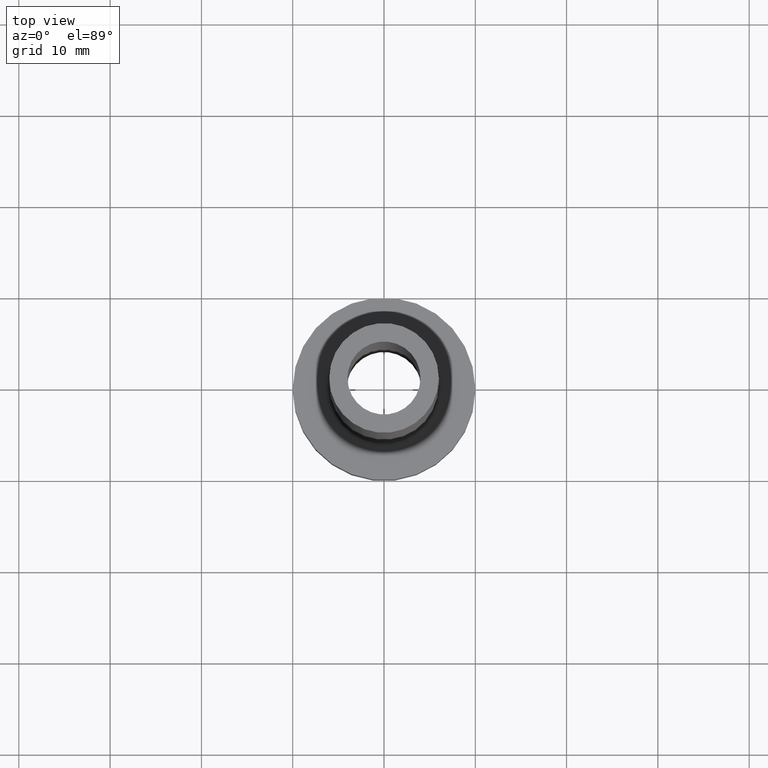
[diagram: clean part render]
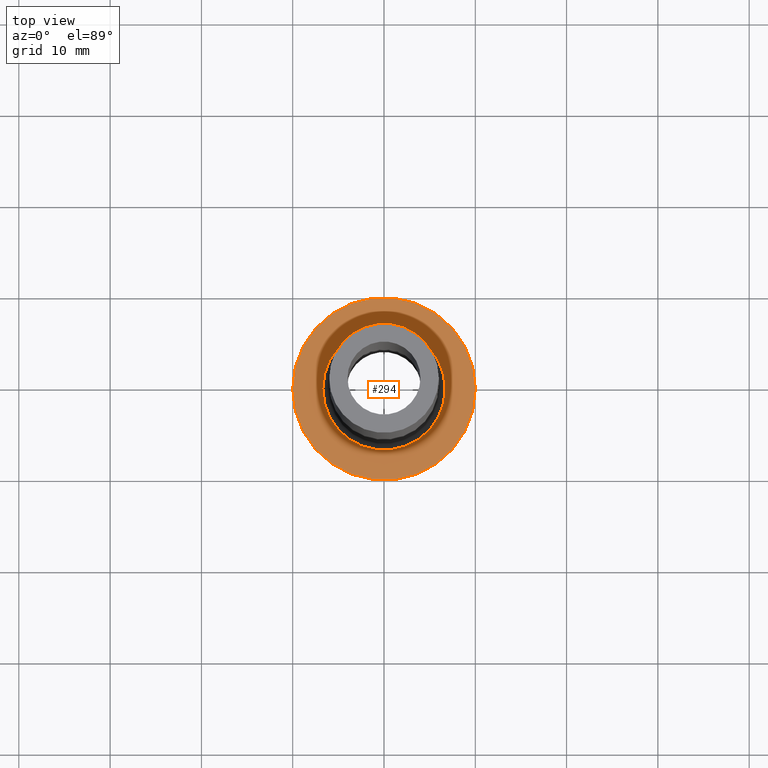
[diagram: same view with one face highlighted and labeled with its STEP entity id]
A machine part, top view. The second image highlights one B-rep face of the part: STEP entity #294.
In plain terms, the highlighted planar face has unit normal (0, 0, 1).
Its self-contained STEP definition (entity closure, byte-faithful):
#19 = VERTEX_POINT ( 'NONE', #330 ) ;
#28 = DIRECTION ( 'NONE',  ( 1.000000000000000000, 0.000000000000000000, 0.000000000000000000 ) ) ;
#33 = CIRCLE ( 'NONE', #325, 10.00000000000000000 ) ;
#44 = CIRCLE ( 'NONE', #353, 10.00000000000000000 ) ;
#58 = DIRECTION ( 'NONE',  ( -0.000000000000000000, -0.000000000000000000, -1.000000000000000000 ) ) ;
#76 = EDGE_CURVE ( 'NONE', #93, #385, #365, .T. ) ;
#93 = VERTEX_POINT ( 'NONE', #202 ) ;
#101 = DIRECTION ( 'NONE',  ( 1.000000000000000000, 0.000000000000000000, 0.000000000000000000 ) ) ;
#106 = CARTESIAN_POINT ( 'NONE',  ( -6.700000000000001066, 8.205133554287267548E-16, 6.999999999999999112 ) ) ;
#108 = DIRECTION ( 'NONE',  ( 0.000000000000000000, 0.000000000000000000, 1.000000000000000000 ) ) ;
#131 = ORIENTED_EDGE ( 'NONE', *, *, #194, .T. ) ;
#132 = DIRECTION ( 'NONE',  ( 0.000000000000000000, 0.000000000000000000, 1.000000000000000000 ) ) ;
#138 = DIRECTION ( 'NONE',  ( 0.000000000000000000, 0.000000000000000000, 1.000000000000000000 ) ) ;
#153 = AXIS2_PLACEMENT_3D ( 'NONE', #318, #138, #350 ) ;
#166 = CARTESIAN_POINT ( 'NONE',  ( 0.000000000000000000, 0.000000000000000000, 7.000000000000000000 ) ) ;
#175 = EDGE_CURVE ( 'NONE', #364, #19, #33, .T. ) ;
#176 = CARTESIAN_POINT ( 'NONE',  ( 0.000000000000000000, 0.000000000000000000, 7.000000000000000000 ) ) ;
#182 = AXIS2_PLACEMENT_3D ( 'NONE', #408, #58, #267 ) ;
#194 = EDGE_CURVE ( 'NONE', #385, #93, #450, .T. ) ;
#202 = CARTESIAN_POINT ( 'NONE',  ( 6.700000000000001066, 0.000000000000000000, 6.999999999999999112 ) ) ;
#250 = EDGE_CURVE ( 'NONE', #19, #364, #44, .T. ) ;
#252 = AXIS2_PLACEMENT_3D ( 'NONE', #436, #373, #101 ) ;
#253 = FACE_OUTER_BOUND ( 'NONE', #309, .T. ) ;
#267 = DIRECTION ( 'NONE',  ( 1.000000000000000000, 0.000000000000000000, 0.000000000000000000 ) ) ;
#294 = ADVANCED_FACE ( 'NONE', ( #351, #253 ), #320, .T. ) ;
#301 = DIRECTION ( 'NONE',  ( 1.000000000000000000, 0.000000000000000000, 0.000000000000000000 ) ) ;
#309 = EDGE_LOOP ( 'NONE', ( #327, #337 ) ) ;
#318 = CARTESIAN_POINT ( 'NONE',  ( 0.000000000000000000, 0.000000000000000000, 7.000000000000000000 ) ) ;
#320 = PLANE ( 'NONE',  #153 ) ;
#325 = AXIS2_PLACEMENT_3D ( 'NONE', #166, #132, #301 ) ;
#327 = ORIENTED_EDGE ( 'NONE', *, *, #250, .T. ) ;
#330 = CARTESIAN_POINT ( 'NONE',  ( -10.00000000000000000, 0.000000000000000000, 7.000000000000000000 ) ) ;
#337 = ORIENTED_EDGE ( 'NONE', *, *, #175, .T. ) ;
#350 = DIRECTION ( 'NONE',  ( 1.000000000000000000, 0.000000000000000000, -0.000000000000000000 ) ) ;
#351 = FACE_BOUND ( 'NONE', #440, .T. ) ;
#353 = AXIS2_PLACEMENT_3D ( 'NONE', #176, #108, #28 ) ;
#364 = VERTEX_POINT ( 'NONE', #453 ) ;
#365 = CIRCLE ( 'NONE', #252, 6.700000000000001066 ) ;
#373 = DIRECTION ( 'NONE',  ( -0.000000000000000000, -0.000000000000000000, -1.000000000000000000 ) ) ;
#385 = VERTEX_POINT ( 'NONE', #106 ) ;
#408 = CARTESIAN_POINT ( 'NONE',  ( 0.000000000000000000, 0.000000000000000000, 7.000000000000000000 ) ) ;
#427 = ORIENTED_EDGE ( 'NONE', *, *, #76, .T. ) ;
#436 = CARTESIAN_POINT ( 'NONE',  ( 0.000000000000000000, 0.000000000000000000, 7.000000000000000000 ) ) ;
#440 = EDGE_LOOP ( 'NONE', ( #427, #131 ) ) ;
#450 = CIRCLE ( 'NONE', #182, 6.700000000000001066 ) ;
#453 = CARTESIAN_POINT ( 'NONE',  ( 10.00000000000000000, 1.224646799147353256E-15, 7.000000000000000000 ) ) ;